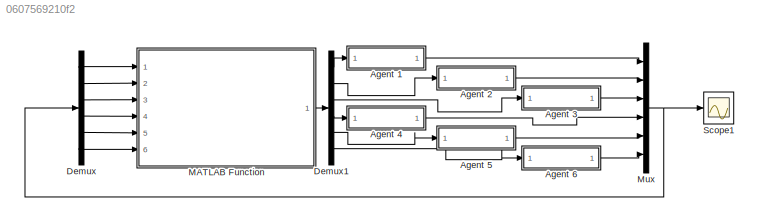
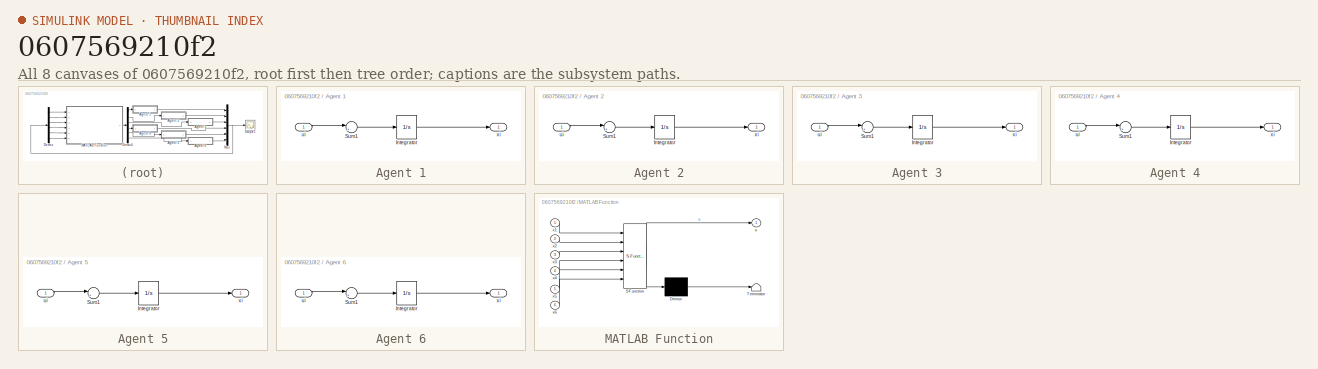
[diagram: thumbnail index - all 8 canvases of the model, root first then tree order]
MODEL slx_0607569210f2
KIND model
CONFIG AbsTol = auto
CONFIG EnableMultiTasking = off
CONFIG FixedStep = auto
CONFIG MaxStep = auto
CONFIG MinStep = auto
CONFIG RelTol = 1e-3
CONFIG SampleTimeConstraint = Unconstrained
CONFIG SolverName = VariableStepAuto
CONFIG StartTime = 0.0
CONFIG StopTime = 25
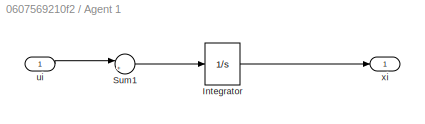
BLOCK [SubSystem] Agent 1
  Ports = [1, 1]
  RequestExecContextInheritance = off
BLOCK [Integrator] Agent 1/Integrator
  InitialCondition = 10
  Ports = [1, 1]
BLOCK [Sum] Agent 1/Sum1
  Inputs = |+-
  Ports = [2, 1]
BLOCK [Inport] Agent 1/ui
BLOCK [Outport] Agent 1/xi
BLOCK [SubSystem] Agent 2
  Ports = [1, 1]
  RequestExecContextInheritance = off
BLOCK [Integrator] Agent 2/Integrator
  InitialCondition = 1
  Ports = [1, 1]
BLOCK [Sum] Agent 2/Sum1
  Inputs = |+-
  Ports = [2, 1]
BLOCK [Inport] Agent 2/ui
BLOCK [Outport] Agent 2/xi
BLOCK [SubSystem] Agent 3
  Ports = [1, 1]
  RequestExecContextInheritance = off
BLOCK [Integrator] Agent 3/Integrator
  InitialCondition = 2
  Ports = [1, 1]
BLOCK [Sum] Agent 3/Sum1
  Inputs = |+-
  Ports = [2, 1]
BLOCK [Inport] Agent 3/ui
BLOCK [Outport] Agent 3/xi
BLOCK [SubSystem] Agent 4
  Ports = [1, 1]
  RequestExecContextInheritance = off
BLOCK [Integrator] Agent 4/Integrator
  InitialCondition = 3
  Ports = [1, 1]
BLOCK [Sum] Agent 4/Sum1
  Inputs = |+-
  Ports = [2, 1]
BLOCK [Inport] Agent 4/ui
BLOCK [Outport] Agent 4/xi
BLOCK [SubSystem] Agent 5
  Ports = [1, 1]
  RequestExecContextInheritance = off
BLOCK [Integrator] Agent 5/Integrator
  InitialCondition = 4
  Ports = [1, 1]
BLOCK [Sum] Agent 5/Sum1
  Inputs = |+-
  Ports = [2, 1]
BLOCK [Inport] Agent 5/ui
BLOCK [Outport] Agent 5/xi
BLOCK [SubSystem] Agent 6
  Ports = [1, 1]
  RequestExecContextInheritance = off
BLOCK [Integrator] Agent 6/Integrator
  InitialCondition = 5
  Ports = [1, 1]
BLOCK [Sum] Agent 6/Sum1
  Inputs = |+-
  Ports = [2, 1]
BLOCK [Inport] Agent 6/ui
BLOCK [Outport] Agent 6/xi
BLOCK [Demux] Demux
  Outputs = 6
  Ports = [1, 6]
BLOCK [Demux] Demux1
  Outputs = 6
  Ports = [1, 6]
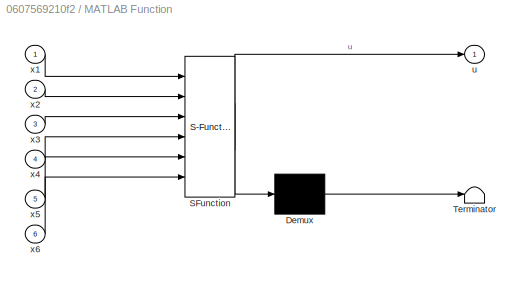
BLOCK [SubSystem] MATLAB Function
  ErrorFcn = Stateflow.Translate.translate
  PermitHierarchicalResolution = ExplicitOnly
  Ports = [6, 1]
  RequestExecContextInheritance = off
  SFBlockType = MATLAB Function
  TreatAsAtomicUnit = on
BLOCK [Demux] MATLAB Function/ Demux 
  Outputs = 1
  Ports = [1, 1]
BLOCK [S-Function] MATLAB Function/ SFunction 
  EnableBusSupport = on
  FunctionName = sf_sfun
  PortCounts = [6 2]
  Ports = [6, 2]
  SFcnIsStateOwnerBlock = off
  SFunctionDeploymentMode = off
  Tag = Stateflow S-Function 2
BLOCK [Terminator] MATLAB Function/ Terminator 
BLOCK [Outport] MATLAB Function/u
BLOCK [Inport] MATLAB Function/x1
BLOCK [Inport] MATLAB Function/x2
  Port = 2
BLOCK [Inport] MATLAB Function/x3
  Port = 3
BLOCK [Inport] MATLAB Function/x4
  Port = 4
BLOCK [Inport] MATLAB Function/x5
  Port = 5
BLOCK [Inport] MATLAB Function/x6
  Port = 6
BLOCK [Mux] Mux
  DisplayOption = bar
  Inputs = 6
  Ports = [6, 1]
BLOCK [Scope] Scope1
  Floating = off
  NumInputPorts = 1
  Ports = [1]
  ScopeSpecificationString = Simulink.scopes.TimeScopeBlockCfg('CurrentConfiguration', extmgr.ConfigurationSet(extmgr.Configuration('Core','General UI',true),extmgr.Configuration('Core','Source UI',true),extmgr.Configuration('Sources','WiredSimulink',true,'DataLoggingVariableName','ScopeData1'),extmgr.Configuration('Visuals','Time Domain',true,'SerializedDisplays',{struct('MinYLimReal','-0.125','MaxYLimReal','11.125','YLabelR...<+1408ch>
LINE Agent 1/Integrator:1 -> Agent 1/xi:1
LINE Agent 1/Sum1:1 -> Agent 1/Integrator:1
LINE Agent 1/ui:1 -> Agent 1/Sum1:1
LINE Agent 1:1 -> Mux:1
LINE Agent 2/Integrator:1 -> Agent 2/xi:1
LINE Agent 2/Sum1:1 -> Agent 2/Integrator:1
LINE Agent 2/ui:1 -> Agent 2/Sum1:1
LINE Agent 2:1 -> Mux:2
LINE Agent 3/Integrator:1 -> Agent 3/xi:1
LINE Agent 3/Sum1:1 -> Agent 3/Integrator:1
LINE Agent 3/ui:1 -> Agent 3/Sum1:1
LINE Agent 3:1 -> Mux:3
LINE Agent 4/Integrator:1 -> Agent 4/xi:1
LINE Agent 4/Sum1:1 -> Agent 4/Integrator:1
LINE Agent 4/ui:1 -> Agent 4/Sum1:1
LINE Agent 4:1 -> Mux:4
LINE Agent 5/Integrator:1 -> Agent 5/xi:1
LINE Agent 5/Sum1:1 -> Agent 5/Integrator:1
LINE Agent 5/ui:1 -> Agent 5/Sum1:1
LINE Agent 5:1 -> Mux:5
LINE Agent 6/Integrator:1 -> Agent 6/xi:1
LINE Agent 6/Sum1:1 -> Agent 6/Integrator:1
LINE Agent 6/ui:1 -> Agent 6/Sum1:1
LINE Agent 6:1 -> Mux:6
LINE Demux1:1 -> Agent 1:1
LINE Demux1:2 -> Agent 2:1
LINE Demux1:3 -> Agent 3:1
LINE Demux1:4 -> Agent 4:1
LINE Demux1:5 -> Agent 5:1
LINE Demux1:6 -> Agent 6:1
LINE Demux:1 -> MATLAB Function:1
LINE Demux:2 -> MATLAB Function:2
LINE Demux:3 -> MATLAB Function:3
LINE Demux:4 -> MATLAB Function:4
LINE Demux:5 -> MATLAB Function:5
LINE Demux:6 -> MATLAB Function:6
LINE MATLAB Function:1 -> Demux1:1
NET Mux:1 -> Demux:1, Scope1:1
note: NET lines group one-source signal fan-out (src -> all destinations, sorted); 1:1 wires keep LINE
CHART MATLAB Function states=1 transitions=1
  STATE_LABEL 'eML_blk_kernel()'
  STATE_LABEL "SCRIPT:\nfunction u = sys_topo_01(x1, x2, x3, x4, x5, x6)\n\nL = [ 0  0  0  0  0  0;\n     -1 +1  0  0  0  0;\n      0 -1 +1  0  0  0;\n      0  0 -1 +1  0  0;\n      0  0 -1 -1 +2  0;\n      0  0  0  0 -1 +1;\n    ];\n\nstates = [x1, x2, x3, x4, x5, x6]';\n\nu = -L*states;\n\nend"
CHART  states=0 transitions=0
